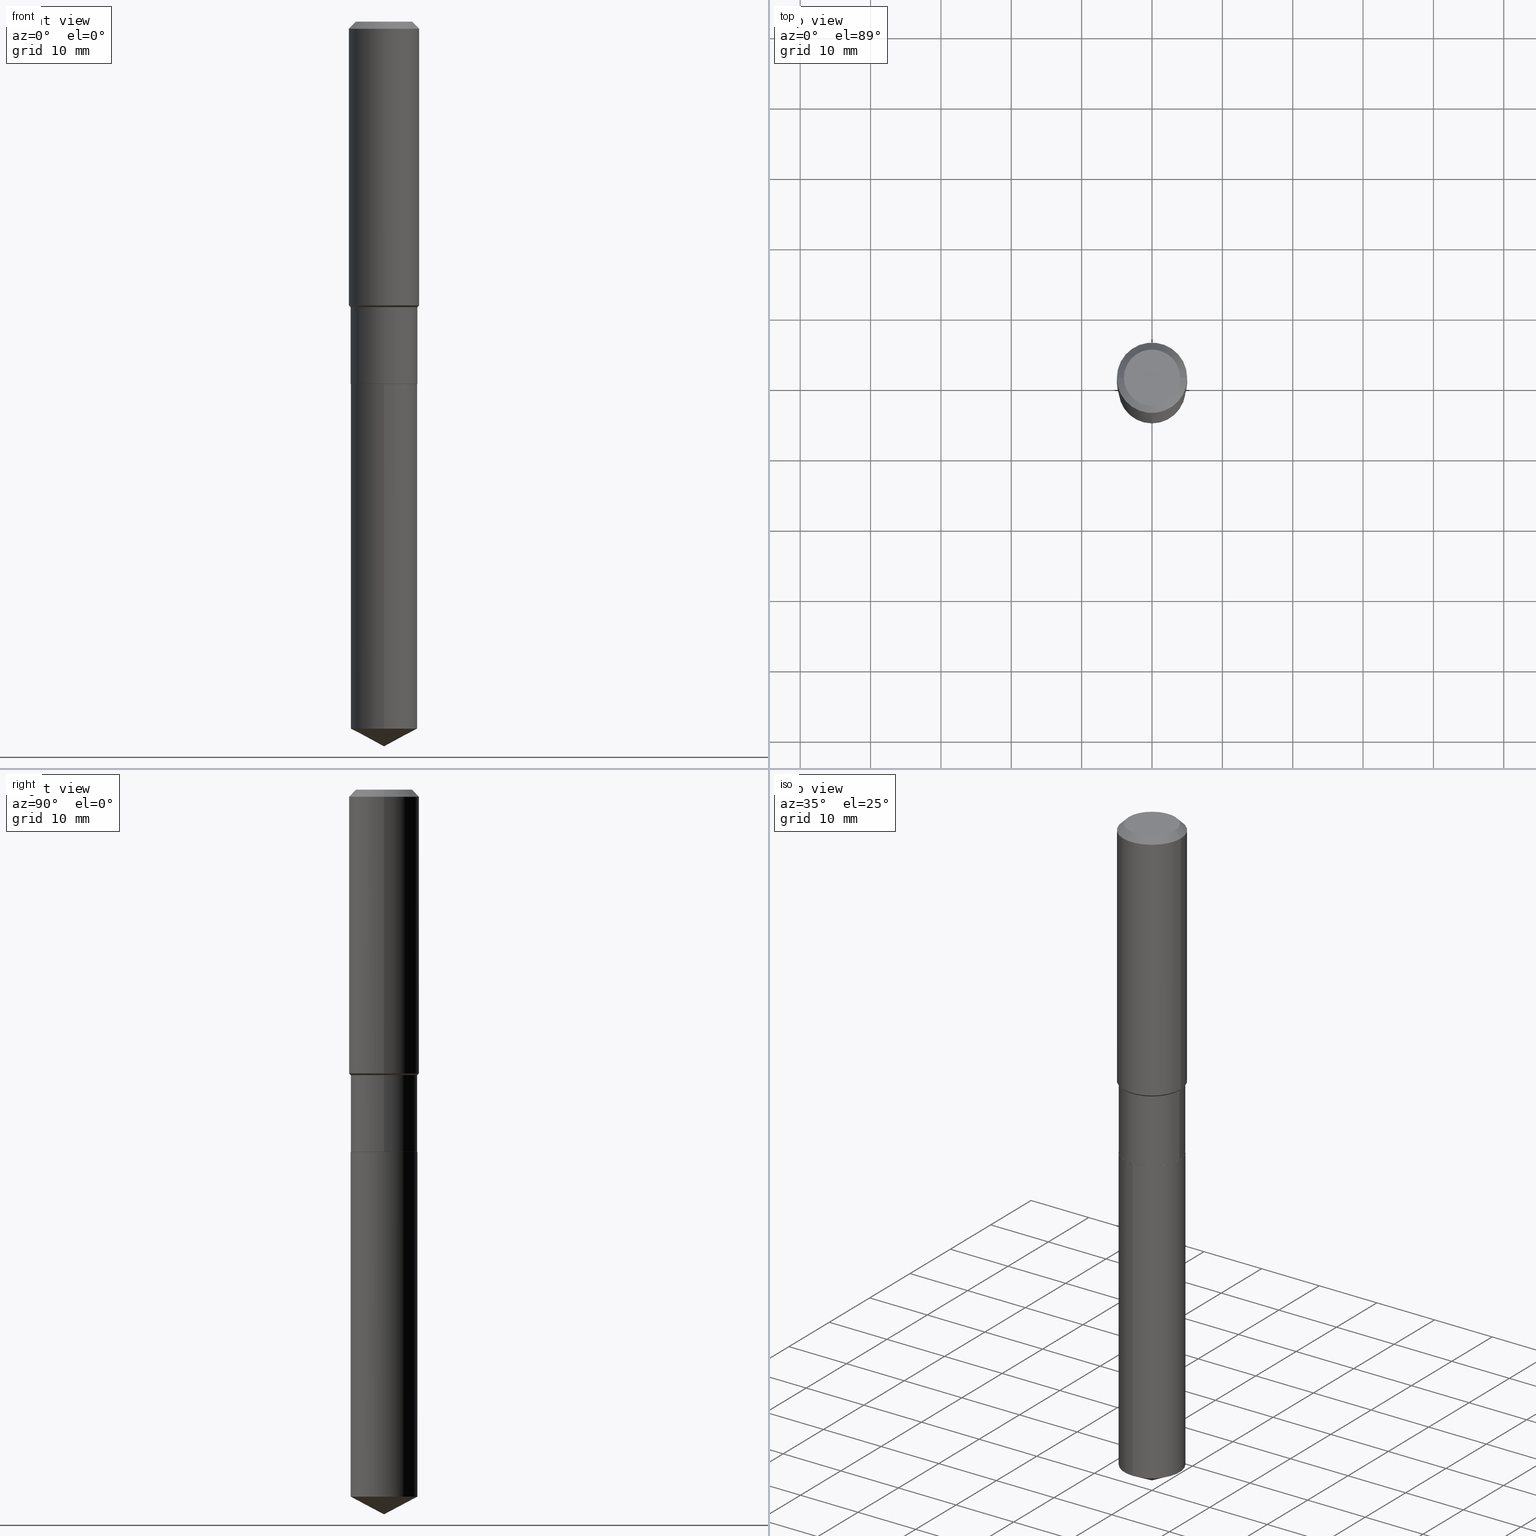
[diagram: canonical four-view strip — front | top / right | iso, engineering-drawing reading convention]
A machine part, canonical four-view strip (front | top / right | iso — engineering-drawing reading convention). The complete STEP part file that produces these views, byte-faithful:
ISO-10303-21;
HEADER;
FILE_DESCRIPTION (( 'STEP AP203' ),
    '1' );
FILE_NAME ('65225.STEP',
    '2024-04-24T21:38:09',
    ( '' ),
    ( '' ),
    'SwSTEP 2.0',
    'SolidWorks 2023',
    '' );
FILE_SCHEMA (( 'CONFIG_CONTROL_DESIGN' ));
ENDSEC;

DATA;
#1 = EDGE_CURVE ( 'NONE', #23, #146, #97, .T. ) ;
#2 = CONICAL_SURFACE ( 'NONE', #458, 0.1968500000000000250, 0.7853981633974447263 ) ;
#3 = APPROVAL_ROLE ( '' ) ;
#4 = CYLINDRICAL_SURFACE ( 'NONE', #437, 0.1968500000000001082 ) ;
#5 = EDGE_LOOP ( 'NONE', ( #305, #341, #303, #431 ) ) ;
#6 = CALENDAR_DATE ( 2024, 24, 4 ) ;
#7 = DIRECTION ( 'NONE',  ( -2.445495425185419561E-29, 3.491443218919681026E-15, 1.000000000000000000 ) ) ;
#8 = DATE_TIME_ROLE ( 'classification_date' ) ;
#9 = EDGE_CURVE ( 'NONE', #40, #338, #349, .T. ) ;
#10 = ORIENTED_EDGE ( 'NONE', *, *, #247, .T. ) ;
#11 = CONICAL_SURFACE ( 'NONE', #46, 0.1869999999999999440, 0.7853981633974533860 ) ;
#12 = DIRECTION ( 'NONE',  ( 1.000000000000000000, -6.982962677686268288E-15, 0.000000000000000000 ) ) ;
#13 = DIMENSIONAL_EXPONENTS ( 1.000000000000000000, 0.000000000000000000, 0.000000000000000000, 0.000000000000000000, 0.000000000000000000, 0.000000000000000000, 0.000000000000000000 ) ;
#14 = FACE_OUTER_BOUND ( 'NONE', #144, .T. ) ;
#15 = VERTEX_POINT ( 'NONE', #402 ) ;
#16 = DIRECTION ( 'NONE',  ( -2.445468806185136597E-29, 3.491481338843145583E-15, 1.000000000000000000 ) ) ;
#17 = AXIS2_PLACEMENT_3D ( 'NONE', #29, #486, #207 ) ;
#18 = ORIENTED_EDGE ( 'NONE', *, *, #122, .T. ) ;
#19 = DIRECTION ( 'NONE',  ( -2.445468806185136877E-29, 3.491481338843145188E-15, 1.000000000000000000 ) ) ;
#20 = VERTEX_POINT ( 'NONE', #203 ) ;
#21 = DIRECTION ( 'NONE',  ( 2.438088387897960049E-29, -3.491481338843145188E-15, -1.000000000000000000 ) ) ;
#22 = CARTESIAN_POINT ( 'NONE',  ( -0.1968500000000000250, 1.237136582792286225E-15, -0.03937000000000029365 ) ) ;
#23 = VERTEX_POINT ( 'NONE', #353 ) ;
#24 =( NAMED_UNIT ( * ) PLANE_ANGLE_UNIT ( ) SI_UNIT ( $, .RADIAN. ) );
#25 = CARTESIAN_POINT ( 'NONE',  ( 0.1968500000000000250, -1.512055823412797189E-15, -0.03937000000000029365 ) ) ;
#26 = AXIS2_PLACEMENT_3D ( 'NONE', #301, #384, #264 ) ;
#27 = AXIS2_PLACEMENT_3D ( 'NONE', #442, #123, #93 ) ;
#28 = PERSON_AND_ORGANIZATION_ROLE ( 'design_owner' ) ;
#29 = CARTESIAN_POINT ( 'NONE',  ( 4.958188004540364383E-29, -7.078978414504478595E-15, -2.027500000000000302 ) ) ;
#30 = EDGE_CURVE ( 'NONE', #333, #23, #276, .T. ) ;
#31 = EDGE_LOOP ( 'NONE', ( #52, #263, #473, #228 ) ) ;
#32 = CARTESIAN_POINT ( 'NONE',  ( 4.958188004540364383E-29, -7.078978414504478595E-15, -2.027500000000000302 ) ) ;
#33 = CARTESIAN_POINT ( 'NONE',  ( -0.1869999999999999996, -4.998547566380161442E-15, -2.027000000000000135 ) ) ;
#34 = AXIS2_PLACEMENT_3D ( 'NONE', #472, #21, #160 ) ;
#35 = DIRECTION ( 'NONE',  ( 6.982962677686265922E-15, 1.000000000000000000, -3.491443218919681026E-15 ) ) ;
#36 = DATE_AND_TIME ( #136, #154 ) ;
#37 = ORIENTED_EDGE ( 'NONE', *, *, #322, .T. ) ;
#38 = AXIS2_PLACEMENT_3D ( 'NONE', #163, #16, #189 ) ;
#39 = FACE_OUTER_BOUND ( 'NONE', #201, .T. ) ;
#40 = VERTEX_POINT ( 'NONE', #385 ) ;
#41 = DIRECTION ( 'NONE',  ( -2.445468806185136597E-29, 3.491481338843145583E-15, 1.000000000000000000 ) ) ;
#42 = ORIENTED_EDGE ( 'NONE', *, *, #266, .T. ) ;
#43 = DIRECTION ( 'NONE',  ( -6.982962677686266711E-15, -1.000000000000000000, 2.921762560068730595E-15 ) ) ;
#44 = CARTESIAN_POINT ( 'NONE',  ( 3.882304003259213067E-29, -5.542901199480434890E-15, -1.587549999999999795 ) ) ;
#45 = AXIS2_PLACEMENT_3D ( 'NONE', #255, #398, #227 ) ;
#46 = AXIS2_PLACEMENT_3D ( 'NONE', #83, #348, #440 ) ;
#47 = CARTESIAN_POINT ( 'NONE',  ( -1.305814020727282303E-15, -0.1870000000000070772, -2.027499999999999414 ) ) ;
#48 = DIRECTION ( 'NONE',  ( 0.7071067811865450192, -7.319954787623246579E-15, -0.7071067811865500152 ) ) ;
#49 = UNCERTAINTY_MEASURE_WITH_UNIT (LENGTH_MEASURE( 1.000000000000000082E-05 ), #315, 'distance_accuracy_value', 'NONE');
#50 = CARTESIAN_POINT ( 'NONE',  ( 0.1869999999999999440, -6.883106311395372484E-15, -1.597399999999999931 ) ) ;
#51 = DIRECTION ( 'NONE',  ( 1.000000000000000000, -6.982962677686265922E-15, 4.876176775795935793E-29 ) ) ;
#52 = ORIENTED_EDGE ( 'NONE', *, *, #412, .F. ) ;
#53 = ORIENTED_EDGE ( 'NONE', *, *, #449, .F. ) ;
#54 = DIRECTION ( 'NONE',  ( 1.000000000000000000, -6.982962677686265133E-15, 0.000000000000000000 ) ) ;
#55 = AXIS2_PLACEMENT_3D ( 'NONE', #401, #480, #239 ) ;
#56 = DIRECTION ( 'NONE',  ( 0.7071067811865511255, -2.468850131082294531E-15, 0.7071067811865439090 ) ) ;
#57 = DIRECTION ( 'NONE',  ( -6.982962677686266711E-15, -1.000000000000000000, 2.921762560068730595E-15 ) ) ;
#58 = ORIENTED_EDGE ( 'NONE', *, *, #382, .F. ) ;
#59 = DIRECTION ( 'NONE',  ( -2.445468806185136597E-29, 3.491481338843145583E-15, 1.000000000000000000 ) ) ;
#60 = FACE_OUTER_BOUND ( 'NONE', #456, .T. ) ;
#61 = AXIS2_PLACEMENT_3D ( 'NONE', #187, #304, #51 ) ;
#62 = PERSON_AND_ORGANIZATION ( #487, #140 ) ;
#63 = CARTESIAN_POINT ( 'NONE',  ( 0.000000000000000000, 0.000000000000000000, 0.000000000000000000 ) ) ;
#64 = EDGE_CURVE ( 'NONE', #309, #343, #152, .T. ) ;
#65 = DATE_AND_TIME ( #410, #80 ) ;
#66 = CARTESIAN_POINT ( 'NONE',  ( 4.958188004540364383E-29, -7.078978414504478595E-15, -2.027500000000000302 ) ) ;
#67 = EDGE_CURVE ( 'NONE', #146, #23, #373, .T. ) ;
#68 = DIRECTION ( 'NONE',  ( -2.445495425185419841E-29, 3.491443218919680631E-15, 1.000000000000000000 ) ) ;
#69 = SECURITY_CLASSIFICATION ( '', '', #145 ) ;
#70 = VECTOR ( 'NONE', #488, 39.37007874015748143 ) ;
#71 = EDGE_CURVE ( 'NONE', #340, #92, #179, .T. ) ;
#72 = DATE_AND_TIME ( #415, #165 ) ;
#73 = CARTESIAN_POINT ( 'NONE',  ( 3.906391871000137557E-29, -5.577292290668041271E-15, -1.597399999999999931 ) ) ;
#74 = PRODUCT_DEFINITION_SHAPE ( 'NONE', 'NONE',  #127 ) ;
#75 = PERSON_AND_ORGANIZATION ( #487, #140 ) ;
#76 = ADVANCED_FACE ( 'NONE', ( #39 ), #4, .T. ) ;
#77 = APPROVAL_STATUS ( 'not_yet_approved' ) ;
#78 = CARTESIAN_POINT ( 'NONE',  ( 4.958188004540364383E-29, -7.078978414504478595E-15, -2.027500000000000302 ) ) ;
#79 = ORIENTED_EDGE ( 'NONE', *, *, #219, .T. ) ;
#80 = LOCAL_TIME ( 17, 38, 9.000000000000000000, #131 ) ;
#81 = EDGE_CURVE ( 'NONE', #20, #188, #291, .T. ) ;
#82 = DIRECTION ( 'NONE',  ( -0.7071067811868130271, 7.493145998871311837E-15, 0.7071067811862817853 ) ) ;
#83 = CARTESIAN_POINT ( 'NONE',  ( 3.906391871000137557E-29, -5.577292290668041271E-15, -1.597399999999999931 ) ) ;
#84 = LINE ( 'NONE', #232, #465 ) ;
#85 =( LENGTH_UNIT ( ) NAMED_UNIT ( * ) SI_UNIT ( $, .METRE. ) );
#86 = VECTOR ( 'NONE', #91, 39.37007874015748143 ) ;
#87 = DIRECTION ( 'NONE',  ( -2.445468806185136597E-29, 3.491481338843145583E-15, 1.000000000000000000 ) ) ;
#88 = AXIS2_PLACEMENT_3D ( 'NONE', #205, #59, #170 ) ;
#89 = DIRECTION ( 'NONE',  ( -2.445495425185419841E-29, 3.491443218919680631E-15, 1.000000000000000000 ) ) ;
#90 = CARTESIAN_POINT ( 'NONE',  ( 9.627810689950954155E-31, -1.374596203102556547E-16, -0.03937000000000029365 ) ) ;
#91 = DIRECTION ( 'NONE',  ( -0.7071067811865450192, 2.468850131082230634E-15, -0.7071067811865500152 ) ) ;
#92 = VERTEX_POINT ( 'NONE', #253 ) ;
#93 = DIRECTION ( 'NONE',  ( 1.000000000000000000, 0.000000000000000000, 0.000000000000000000 ) ) ;
#94 = CARTESIAN_POINT ( 'NONE',  ( 9.916728498669395871E-29, -1.415815139704119698E-14, -4.055100000000000371 ) ) ;
#95 = EDGE_CURVE ( 'NONE', #40, #309, #223, .T. ) ;
#96 = CYLINDRICAL_SURFACE ( 'NONE', #17, 0.1869999999999999996 ) ;
#97 = CIRCLE ( 'NONE', #185, 0.1869999999999999996 ) ;
#98 = FACE_OUTER_BOUND ( 'NONE', #265, .T. ) ;
#99 = PERSON_AND_ORGANIZATION_ROLE ( 'creator' ) ;
#100 = CARTESIAN_POINT ( 'NONE',  ( -0.1869999999999999718, 1.328714915871387147E-15, -9.198408618776671699E-30 ) ) ;
#101 = DATE_AND_TIME ( #6, #381 ) ;
#102 = AXIS2_PLACEMENT_3D ( 'NONE', #78, #220, #378 ) ;
#103 = CC_DESIGN_SECURITY_CLASSIFICATION ( #69, ( #429 ) ) ;
#104 = PERSON_AND_ORGANIZATION_ROLE ( 'classification_officer' ) ;
#105 = CARTESIAN_POINT ( 'NONE',  ( -0.1864999999999999991, -5.751166985137778976E-15, -2.027499999999999858 ) ) ;
#106 = ORIENTED_EDGE ( 'NONE', *, *, #376, .T. ) ;
#107 = DIRECTION ( 'NONE',  ( -0.7071067811865511255, 7.493145998870366782E-15, 0.7071067811865439090 ) ) ;
#108 = AXIS2_PLACEMENT_3D ( 'NONE', #369, #420, #217 ) ;
#109 = AXIS2_PLACEMENT_3D ( 'NONE', #32, #320, #35 ) ;
#110 = ORIENTED_EDGE ( 'NONE', *, *, #214, .F. ) ;
#111 = CARTESIAN_POINT ( 'NONE',  ( 9.627810689950954155E-31, -1.374596203102556547E-16, -0.03937000000000029365 ) ) ;
#112 = CARTESIAN_POINT ( 'NONE',  ( 0.1864999999999999991, -8.381300953892966011E-15, -2.027499999999999858 ) ) ;
#113 = PRODUCT_RELATED_PRODUCT_CATEGORY ( 'detail', '', ( #489 ) ) ;
#114 = AXIS2_PLACEMENT_3D ( 'NONE', #116, #229, #259 ) ;
#115 = ORIENTED_EDGE ( 'NONE', *, *, #135, .T. ) ;
#116 = CARTESIAN_POINT ( 'NONE',  ( -8.636267291959854835E-28, 1.233001657604707014E-13, 35.31497874015747840 ) ) ;
#117 = EDGE_LOOP ( 'NONE', ( #18, #222 ) ) ;
#118 = FACE_OUTER_BOUND ( 'NONE', #308, .T. ) ;
#119 = EDGE_LOOP ( 'NONE', ( #470, #230, #302 ) ) ;
#120 = ORIENTED_EDGE ( 'NONE', *, *, #9, .T. ) ;
#121 = DIRECTION ( 'NONE',  ( -2.445468806185136597E-29, 3.491481338843145583E-15, 1.000000000000000000 ) ) ;
#122 = EDGE_CURVE ( 'NONE', #224, #270, #477, .T. ) ;
#123 = DIRECTION ( 'NONE',  ( 0.000000000000000000, 0.000000000000000000, 1.000000000000000000 ) ) ;
#124 = FACE_OUTER_BOUND ( 'NONE', #119, .T. ) ;
#125 = FACE_OUTER_BOUND ( 'NONE', #117, .T. ) ;
#126 = EDGE_LOOP ( 'NONE', ( #332, #106, #403 ) ) ;
#127 = PRODUCT_DEFINITION ( 'UNKNOWN', '', #429, #380 ) ;
#128 = CARTESIAN_POINT ( 'NONE',  ( 1.328714915871436648E-15, 0.1869999999999929496, -2.027500000000000746 ) ) ;
#129 = APPROVAL ( #77, 'UNSPECIFIED' ) ;
#130 = APPROVAL_PERSON_ORGANIZATION ( #62, #471, #244 ) ;
#131 = COORDINATED_UNIVERSAL_TIME_OFFSET ( 5, 0, .BEHIND. ) ;
#132 = DIRECTION ( 'NONE',  ( -2.445468806185136597E-29, 3.491481338843145583E-15, 1.000000000000000000 ) ) ;
#133 = VECTOR ( 'NONE', #204, 39.37007874015748143 ) ;
#134 = DIRECTION ( 'NONE',  ( -1.000000000000000000, 6.982962677686265922E-15, 0.000000000000000000 ) ) ;
#135 = EDGE_CURVE ( 'NONE', #188, #467, #141, .T. ) ;
#136 = CALENDAR_DATE ( 2024, 24, 4 ) ;
#137 = CARTESIAN_POINT ( 'NONE',  ( 9.627810689950954155E-31, -1.374596203102556547E-16, -0.03937000000000029365 ) ) ;
#138 = CC_DESIGN_PERSON_AND_ORGANIZATION_ASSIGNMENT ( #362, #99, ( #127 ) ) ;
#139 = COORDINATED_UNIVERSAL_TIME_OFFSET ( 5, 0, .BEHIND. ) ;
#140 = ORGANIZATION ( 'UNSPECIFIED', 'UNSPECIFIED', '' ) ;
#141 = CIRCLE ( 'NONE', #383, 0.1968500000000002192 ) ;
#142 = APPROVAL_PERSON_ORGANIZATION ( #75, #129, #3 ) ;
#143 = CARTESIAN_POINT ( 'NONE',  ( 0.000000000000000000, 0.000000000000000000, 0.000000000000000000 ) ) ;
#144 = EDGE_LOOP ( 'NONE', ( #79, #461, #110, #158 ) ) ;
#145 = SECURITY_CLASSIFICATION_LEVEL ( 'unclassified' ) ;
#146 = VERTEX_POINT ( 'NONE', #150 ) ;
#147 = DIRECTION ( 'NONE',  ( 1.000000000000000000, -6.982962677686266711E-15, 4.876176775795935793E-29 ) ) ;
#148 = EDGE_LOOP ( 'NONE', ( #417, #236, #37, #466 ) ) ;
#149 = VECTOR ( 'NONE', #248, 39.37007874015748143 ) ;
#150 = CARTESIAN_POINT ( 'NONE',  ( -1.305814020727234577E-15, -0.1870000000000137386, -3.955670336279303534 ) ) ;
#151 = CARTESIAN_POINT ( 'NONE',  ( -0.1968500000000002192, -4.144197824136677102E-15, -1.587549999999999795 ) ) ;
#152 = LINE ( 'NONE', #218, #184 ) ;
#153 = CARTESIAN_POINT ( 'NONE',  ( 4.958188004540364383E-29, -7.078978414504477806E-15, -2.027499999999999858 ) ) ;
#154 = LOCAL_TIME ( 17, 38, 9.000000000000000000, #323 ) ;
#155 = CIRCLE ( 'NONE', #428, 0.1869999999999999996 ) ;
#156 = PLANE ( 'NONE',  #34 ) ;
#157 = ORIENTED_EDGE ( 'NONE', *, *, #281, .F. ) ;
#158 = ORIENTED_EDGE ( 'NONE', *, *, #71, .F. ) ;
#159 = ADVANCED_FACE ( 'NONE', ( #287 ), #326, .T. ) ;
#160 = DIRECTION ( 'NONE',  ( -1.000000000000000000, 6.982962677686265922E-15, -4.876176775795935793E-29 ) ) ;
#161 = ORIENTED_EDGE ( 'NONE', *, *, #453, .F. ) ;
#162 = CC_DESIGN_DATE_AND_TIME_ASSIGNMENT ( #72, #8, ( #69 ) ) ;
#163 = CARTESIAN_POINT ( 'NONE',  ( 4.956965270137272702E-29, -7.077232673835057091E-15, -2.027000000000000135 ) ) ;
#164 = ORIENTED_EDGE ( 'NONE', *, *, #122, .F. ) ;
#165 = LOCAL_TIME ( 17, 38, 9.000000000000000000, #139 ) ;
#166 = CIRCLE ( 'NONE', #45, 0.1864999999999999991 ) ;
#167 = FACE_OUTER_BOUND ( 'NONE', #126, .T. ) ;
#168 = VECTOR ( 'NONE', #7, 39.37007874015748143 ) ;
#169 = ADVANCED_FACE ( 'NONE', ( #193 ), #11, .T. ) ;
#170 = DIRECTION ( 'NONE',  ( 1.000000000000000000, -6.982962677686266711E-15, 4.876176775795935793E-29 ) ) ;
#171 = CARTESIAN_POINT ( 'NONE',  ( 9.627810689950954155E-31, -1.374596203102556547E-16, -0.03937000000000029365 ) ) ;
#172 = CYLINDRICAL_SURFACE ( 'NONE', #88, 0.1869999999999999718 ) ;
#173 = CONICAL_SURFACE ( 'NONE', #406, 0.1968500000000000250, 0.7853981633974447263 ) ;
#174 = ADVANCED_FACE ( 'NONE', ( #339 ), #156, .F. ) ;
#175 = DIRECTION ( 'NONE',  ( -1.000000000000000000, 6.982962677686265922E-15, 0.000000000000000000 ) ) ;
#176 = PERSON_AND_ORGANIZATION ( #487, #140 ) ;
#177 = DIRECTION ( 'NONE',  ( 0.7071067811868130271, -2.468850131085038979E-15, 0.7071067811862817853 ) ) ;
#178 = PERSON_AND_ORGANIZATION ( #487, #140 ) ;
#179 = LINE ( 'NONE', #112, #446 ) ;
#180 = ORIENTED_EDGE ( 'NONE', *, *, #67, .T. ) ;
#181 = EDGE_LOOP ( 'NONE', ( #260, #311, #161, #399 ) ) ;
#182 = EDGE_CURVE ( 'NONE', #476, #379, #84, .T. ) ;
#183 = DIRECTION ( 'NONE',  ( 1.000000000000000000, -6.982962677686265922E-15, 0.000000000000000000 ) ) ;
#184 = VECTOR ( 'NONE', #48, 39.37007874015748143 ) ;
#185 = AXIS2_PLACEMENT_3D ( 'NONE', #436, #89, #57 ) ;
#186 = APPROVAL ( #370, 'UNSPECIFIED' ) ;
#187 = CARTESIAN_POINT ( 'NONE',  ( 7.032042479484773921E-29, -4.109100769917726060E-15, -2.027500000000000302 ) ) ;
#188 = VERTEX_POINT ( 'NONE', #151 ) ;
#189 = DIRECTION ( 'NONE',  ( 1.000000000000000000, -6.982962677686265133E-15, 0.000000000000000000 ) ) ;
#190 = ORIENTED_EDGE ( 'NONE', *, *, #412, .T. ) ;
#191 = ADVANCED_FACE ( 'NONE', ( #435 ), #393, .T. ) ;
#192 = DIRECTION ( 'NONE',  ( -2.445468806185136597E-29, 3.491481338843145583E-15, 1.000000000000000000 ) ) ;
#193 = FACE_OUTER_BOUND ( 'NONE', #5, .T. ) ;
#194 = EDGE_LOOP ( 'NONE', ( #58, #391, #387, #441 ) ) ;
#195 = APPROVAL_PERSON_ORGANIZATION ( #176, #186, #282 ) ;
#196 = DIRECTION ( 'NONE',  ( 1.000000000000000000, -6.982962677686267499E-15, 0.000000000000000000 ) ) ;
#197 = CIRCLE ( 'NONE', #234, 0.1968500000000000250 ) ;
#198 = LINE ( 'NONE', #346, #212 ) ;
#199 = CC_DESIGN_PERSON_AND_ORGANIZATION_ASSIGNMENT ( #178, #490, ( #429 ) ) ;
#200 = DIRECTION ( 'NONE',  ( -2.445468806185136597E-29, 3.491481338843145583E-15, 1.000000000000000000 ) ) ;
#201 = EDGE_LOOP ( 'NONE', ( #237, #115, #433, #288 ) ) ;
#202 = CYLINDRICAL_SURFACE ( 'NONE', #374, 0.1968500000000001082 ) ;
#203 = CARTESIAN_POINT ( 'NONE',  ( -0.1869999999999999440, -4.998547566380162231E-15, -1.597399999999999931 ) ) ;
#204 = DIRECTION ( 'NONE',  ( -6.165590087286829718E-15, -0.8829475928589257672, 0.4694715627858929707 ) ) ;
#205 = CARTESIAN_POINT ( 'NONE',  ( 0.000000000000000000, 0.000000000000000000, 0.000000000000000000 ) ) ;
#206 = APPROVAL_DATE_TIME ( #65, #471 ) ;
#207 = DIRECTION ( 'NONE',  ( -6.982962677686266711E-15, -1.000000000000000000, 2.921762560068730595E-15 ) ) ;
#208 = EDGE_CURVE ( 'NONE', #343, #338, #240, .T. ) ;
#209 = APPLICATION_PROTOCOL_DEFINITION ( 'international standard', 'config_control_design', 1994, #482 ) ;
#210 = CARTESIAN_POINT ( 'NONE',  ( 0.1864999999999999991, -8.381300953892966011E-15, -2.027499999999999858 ) ) ;
#211 = VECTOR ( 'NONE', #107, 39.37007874015748143 ) ;
#212 = VECTOR ( 'NONE', #19, 39.37007874015748143 ) ;
#213 = COORDINATED_UNIVERSAL_TIME_OFFSET ( 5, 0, .BEHIND. ) ;
#214 = EDGE_CURVE ( 'NONE', #92, #379, #454, .T. ) ;
#215 = LINE ( 'NONE', #295, #168 ) ;
#216 = CONICAL_SURFACE ( 'NONE', #114, 74.04434902938334062, 1.082104136236485381 ) ;
#217 = DIRECTION ( 'NONE',  ( 1.000000000000000000, -6.982962677686267499E-15, 0.000000000000000000 ) ) ;
#218 = CARTESIAN_POINT ( 'NONE',  ( 0.1968500000000000250, -1.487948651171581601E-15, -0.03937000000000029365 ) ) ;
#219 = EDGE_CURVE ( 'NONE', #340, #476, #166, .T. ) ;
#220 = DIRECTION ( 'NONE',  ( -2.445495425185419841E-29, 3.491443218919680631E-15, 1.000000000000000000 ) ) ;
#221 = CARTESIAN_POINT ( 'NONE',  ( 9.673519740889634982E-29, -1.381107566002893421E-14, -3.955670336279303978 ) ) ;
#222 = ORIENTED_EDGE ( 'NONE', *, *, #392, .T. ) ;
#223 = CIRCLE ( 'NONE', #267, 0.1574800000000000089 ) ;
#224 = VERTEX_POINT ( 'NONE', #47 ) ;
#225 = AXIS2_PLACEMENT_3D ( 'NONE', #310, #298, #262 ) ;
#226 = AXIS2_PLACEMENT_3D ( 'NONE', #66, #68, #43 ) ;
#227 = DIRECTION ( 'NONE',  ( 1.000000000000000000, -6.982962677686268288E-15, 0.000000000000000000 ) ) ;
#228 = ORIENTED_EDGE ( 'NONE', *, *, #9, .F. ) ;
#229 = DIRECTION ( 'NONE',  ( -2.445495425185419841E-29, 3.491443218919680631E-15, 1.000000000000000000 ) ) ;
#230 = ORIENTED_EDGE ( 'NONE', *, *, #30, .T. ) ;
#231 = ORIENTED_EDGE ( 'NONE', *, *, #468, .F. ) ;
#232 = CARTESIAN_POINT ( 'NONE',  ( -0.1864999999999999991, -5.753816212311890177E-15, -2.027499999999999858 ) ) ;
#233 = ORIENTED_EDGE ( 'NONE', *, *, #382, .T. ) ;
#234 = AXIS2_PLACEMENT_3D ( 'NONE', #111, #342, #469 ) ;
#235 = DIRECTION ( 'NONE',  ( 1.000000000000000000, -6.982962677686265922E-15, 0.000000000000000000 ) ) ;
#236 = ORIENTED_EDGE ( 'NONE', *, *, #306, .T. ) ;
#237 = ORIENTED_EDGE ( 'NONE', *, *, #404, .F. ) ;
#238 = DIRECTION ( 'NONE',  ( -6.982962677686266711E-15, -1.000000000000000000, 2.921762560068730595E-15 ) ) ;
#239 = DIRECTION ( 'NONE',  ( 1.000000000000000000, -6.982962677686265922E-15, 4.876223630392693006E-29 ) ) ;
#240 = CIRCLE ( 'NONE', #251, 0.1968500000000000250 ) ;
#241 = APPLICATION_PROTOCOL_DEFINITION ( 'international standard', 'config_control_design', 1994, #462 ) ;
#242 = LINE ( 'NONE', #443, #70 ) ;
#243 = ADVANCED_FACE ( 'NONE', ( #118 ), #336, .F. ) ;
#244 = APPROVAL_ROLE ( '' ) ;
#245 = DIRECTION ( 'NONE',  ( 2.445468806185136597E-29, -3.491481338843145583E-15, -1.000000000000000000 ) ) ;
#246 = DIRECTION ( 'NONE',  ( 6.273719981627760554E-15, 0.8829475928589289868, 0.4694715627858866425 ) ) ;
#247 = EDGE_CURVE ( 'NONE', #476, #340, #327, .T. ) ;
#248 = DIRECTION ( 'NONE',  ( -2.445468806185136877E-29, 3.491481338843145188E-15, 1.000000000000000000 ) ) ;
#249 = PERSON_AND_ORGANIZATION ( #487, #140 ) ;
#250 = AXIS2_PLACEMENT_3D ( 'NONE', #455, #87, #427 ) ;
#251 = AXIS2_PLACEMENT_3D ( 'NONE', #90, #464, #235 ) ;
#252 = FACE_OUTER_BOUND ( 'NONE', #271, .T. ) ;
#253 = CARTESIAN_POINT ( 'NONE',  ( 0.1869999999999999996, -8.383046694562388303E-15, -2.027000000000000135 ) ) ;
#254 = AXIS2_PLACEMENT_3D ( 'NONE', #153, #200, #475 ) ;
#255 = CARTESIAN_POINT ( 'NONE',  ( 4.958188004540364383E-29, -7.078978414504477806E-15, -2.027499999999999858 ) ) ;
#256 = DIRECTION ( 'NONE',  ( -6.982962677686266711E-15, -1.000000000000000000, 2.921762560068730595E-15 ) ) ;
#257 = AXIS2_PLACEMENT_3D ( 'NONE', #221, #299, #256 ) ;
#258 = ORIENTED_EDGE ( 'NONE', *, *, #71, .T. ) ;
#259 = DIRECTION ( 'NONE',  ( -6.982962677686265133E-15, -1.000000000000000000, 3.541896320645570335E-15 ) ) ;
#260 = ORIENTED_EDGE ( 'NONE', *, *, #214, .T. ) ;
#261 = ORIENTED_EDGE ( 'NONE', *, *, #404, .T. ) ;
#262 = DIRECTION ( 'NONE',  ( 1.000000000000000000, -6.982962677686265922E-15, 0.000000000000000000 ) ) ;
#263 = ORIENTED_EDGE ( 'NONE', *, *, #64, .T. ) ;
#264 = DIRECTION ( 'NONE',  ( 1.000000000000000000, -6.982962677686266711E-15, 4.876176775795935793E-29 ) ) ;
#265 = EDGE_LOOP ( 'NONE', ( #395, #426, #120, #42 ) ) ;
#266 = EDGE_CURVE ( 'NONE', #338, #343, #197, .T. ) ;
#267 = AXIS2_PLACEMENT_3D ( 'NONE', #422, #424, #328 ) ;
#268 = VECTOR ( 'NONE', #448, 39.37007874015748143 ) ;
#269 = CARTESIAN_POINT ( 'NONE',  ( 1.328714915871483980E-15, 0.1869999999999929219, -2.027500000000000746 ) ) ;
#270 = VERTEX_POINT ( 'NONE', #269 ) ;
#271 = EDGE_LOOP ( 'NONE', ( #375, #397, #452, #157 ) ) ;
#272 = CARTESIAN_POINT ( 'NONE',  ( 9.916620558623248508E-29, -1.415830597333084866E-14, -4.055100000000000371 ) ) ;
#273 = EDGE_CURVE ( 'NONE', #467, #188, #396, .T. ) ;
#274 = MECHANICAL_CONTEXT ( 'NONE', #482, 'mechanical' ) ;
#275 = CARTESIAN_POINT ( 'NONE',  ( 4.958188004540364383E-29, -7.078978414504478595E-15, -2.027500000000000302 ) ) ;
#276 = LINE ( 'NONE', #409, #364 ) ;
#277 = CONICAL_SURFACE ( 'NONE', #345, 74.04434902938334062, 1.082104136236485381 ) ;
#278 = CARTESIAN_POINT ( 'NONE',  ( 3.906391871000137557E-29, -5.577292290668041271E-15, -1.597399999999999931 ) ) ;
#279 = MANIFOLD_SOLID_BREP ( 'Body-Move/Copy2[1]', #478 ) ;
#280 = DIRECTION ( 'NONE',  ( 2.445468806185136597E-29, -3.491481338843145583E-15, -1.000000000000000000 ) ) ;
#281 = EDGE_CURVE ( 'NONE', #15, #467, #386, .T. ) ;
#282 = APPROVAL_ROLE ( '' ) ;
#283 = LINE ( 'NONE', #272, #133 ) ;
#284 = ADVANCED_FACE ( 'NONE', ( #14 ), #356, .T. ) ;
#285 = SHAPE_DEFINITION_REPRESENTATION ( #74, #319 ) ;
#286 = CONICAL_SURFACE ( 'NONE', #355, 0.1869999999999999440, 0.7853981633974533860 ) ;
#287 = FACE_OUTER_BOUND ( 'NONE', #438, .T. ) ;
#288 = ORIENTED_EDGE ( 'NONE', *, *, #266, .F. ) ;
#289 = MANIFOLD_SOLID_BREP ( 'Body-Move/Copy2[2]', #292 ) ;
#290 = DATE_TIME_ROLE ( 'creation_date' ) ;
#291 = LINE ( 'NONE', #459, #211 ) ;
#292 = CLOSED_SHELL ( 'NONE', ( #284, #354, #365, #483, #191, #425, #169, #76, #347, #174, #243, #159 ) ) ;
#293 = CIRCLE ( 'NONE', #55, 0.1574800000000000089 ) ;
#294 = ORIENTED_EDGE ( 'NONE', *, *, #208, .F. ) ;
#295 = CARTESIAN_POINT ( 'NONE',  ( -1.305814020727282303E-15, -0.1870000000000070772, -2.027499999999999414 ) ) ;
#296 = CC_DESIGN_PERSON_AND_ORGANIZATION_ASSIGNMENT ( #249, #423, ( #429 ) ) ;
#297 = ADVANCED_FACE ( 'NONE', ( #124 ), #216, .T. ) ;
#298 = DIRECTION ( 'NONE',  ( -2.445468806185136597E-29, 3.491481338843145583E-15, 1.000000000000000000 ) ) ;
#299 = DIRECTION ( 'NONE',  ( -2.445495425185419841E-29, 3.491443218919680631E-15, 1.000000000000000000 ) ) ;
#300 = CC_DESIGN_PERSON_AND_ORGANIZATION_ASSIGNMENT ( #358, #28, ( #489 ) ) ;
#301 = CARTESIAN_POINT ( 'NONE',  ( 0.000000000000000000, 0.000000000000000000, 0.000000000000000000 ) ) ;
#302 = ORIENTED_EDGE ( 'NONE', *, *, #67, .F. ) ;
#303 = ORIENTED_EDGE ( 'NONE', *, *, #281, .T. ) ;
#304 = DIRECTION ( 'NONE',  ( -2.438088387897960049E-29, 3.491481338843145188E-15, 1.000000000000000000 ) ) ;
#305 = ORIENTED_EDGE ( 'NONE', *, *, #81, .F. ) ;
#306 = EDGE_CURVE ( 'NONE', #379, #92, #155, .T. ) ;
#307 = FACE_OUTER_BOUND ( 'NONE', #388, .T. ) ;
#308 = EDGE_LOOP ( 'NONE', ( #329, #344 ) ) ;
#309 = VERTEX_POINT ( 'NONE', #389 ) ;
#310 = CARTESIAN_POINT ( 'NONE',  ( 3.882304003259213067E-29, -5.542901199480434890E-15, -1.587549999999999795 ) ) ;
#311 = ORIENTED_EDGE ( 'NONE', *, *, #434, .T. ) ;
#312 = AXIS2_PLACEMENT_3D ( 'NONE', #463, #121, #12 ) ;
#313 = LOCAL_TIME ( 17, 38, 9.000000000000000000, #213 ) ;
#314 = CARTESIAN_POINT ( 'NONE',  ( -8.636267291959854835E-28, 1.233001657604707014E-13, 35.31497874015747840 ) ) ;
#315 =( CONVERSION_BASED_UNIT ( 'INCH', #351 ) LENGTH_UNIT ( ) NAMED_UNIT ( #13 ) );
#316 = LINE ( 'NONE', #481, #149 ) ;
#317 = DIRECTION ( 'NONE',  ( -2.445468806185136597E-29, 3.491481338843145583E-15, 1.000000000000000000 ) ) ;
#318 = CC_DESIGN_APPROVAL ( #186, ( #429 ) ) ;
#319 = ADVANCED_BREP_SHAPE_REPRESENTATION ( '65225', ( #279, #289, #27 ), #357 ) ;
#320 = DIRECTION ( 'NONE',  ( 2.445495425185419281E-29, -3.491443218919681026E-15, -1.000000000000000000 ) ) ;
#321 = DIRECTION ( 'NONE',  ( -6.982962677686265133E-15, -1.000000000000000000, 3.541896320645570335E-15 ) ) ;
#322 = EDGE_CURVE ( 'NONE', #92, #15, #198, .T. ) ;
#323 = COORDINATED_UNIVERSAL_TIME_OFFSET ( 5, 0, .BEHIND. ) ;
#324 = CARTESIAN_POINT ( 'NONE',  ( 0.1968500000000002192, -6.917497402582978865E-15, -1.587549999999999795 ) ) ;
#325 = DIRECTION ( 'NONE',  ( -2.445468806185136597E-29, 3.491481338843145583E-15, 1.000000000000000000 ) ) ;
#326 = CONICAL_SURFACE ( 'NONE', #250, 0.1864999999999999991, 0.7853981633978239785 ) ;
#327 = CIRCLE ( 'NONE', #312, 0.1864999999999999991 ) ;
#328 = DIRECTION ( 'NONE',  ( 1.000000000000000000, -6.982962677686265922E-15, 4.876223630392693006E-29 ) ) ;
#329 = ORIENTED_EDGE ( 'NONE', *, *, #219, .F. ) ;
#330 = ADVANCED_FACE ( 'NONE', ( #307 ), #96, .T. ) ;
#331 = COORDINATED_UNIVERSAL_TIME_OFFSET ( 5, 0, .BEHIND. ) ;
#332 = ORIENTED_EDGE ( 'NONE', *, *, #30, .F. ) ;
#333 = VERTEX_POINT ( 'NONE', #94 ) ;
#334 = AXIS2_PLACEMENT_3D ( 'NONE', #278, #132, #413 ) ;
#335 = ORIENTED_EDGE ( 'NONE', *, *, #306, .F. ) ;
#336 = PLANE ( 'NONE',  #61 ) ;
#337 = ADVANCED_FACE ( 'NONE', ( #125 ), #367, .F. ) ;
#338 = VERTEX_POINT ( 'NONE', #361 ) ;
#339 = FACE_OUTER_BOUND ( 'NONE', #350, .T. ) ;
#340 = VERTEX_POINT ( 'NONE', #210 ) ;
#341 = ORIENTED_EDGE ( 'NONE', *, *, #474, .T. ) ;
#342 = DIRECTION ( 'NONE',  ( -2.445468806185136597E-29, 3.491481338843145583E-15, 1.000000000000000000 ) ) ;
#343 = VERTEX_POINT ( 'NONE', #25 ) ;
#344 = ORIENTED_EDGE ( 'NONE', *, *, #247, .F. ) ;
#345 = AXIS2_PLACEMENT_3D ( 'NONE', #314, #359, #321 ) ;
#346 = CARTESIAN_POINT ( 'NONE',  ( 0.1869999999999999718, -1.305814020727331607E-15, 9.118450570738398307E-30 ) ) ;
#347 = ADVANCED_FACE ( 'NONE', ( #98 ), #173, .T. ) ;
#348 = DIRECTION ( 'NONE',  ( -2.445468806185136597E-29, 3.491481338843145583E-15, 1.000000000000000000 ) ) ;
#349 = LINE ( 'NONE', #22, #86 ) ;
#350 = EDGE_LOOP ( 'NONE', ( #390, #190 ) ) ;
#351 = LENGTH_MEASURE_WITH_UNIT ( LENGTH_MEASURE( 0.02539999999999999897 ), #85 );
#352 = DIRECTION ( 'NONE',  ( -2.445468806185136877E-29, 3.491481338843145188E-15, 1.000000000000000000 ) ) ;
#353 = CARTESIAN_POINT ( 'NONE',  ( 1.328714915871483585E-15, 0.1869999999999861495, -3.955670336279304422 ) ) ;
#354 = ADVANCED_FACE ( 'NONE', ( #363 ), #2, .T. ) ;
#355 = AXIS2_PLACEMENT_3D ( 'NONE', #73, #192, #196 ) ;
#356 = CONICAL_SURFACE ( 'NONE', #254, 0.1864999999999999991, 0.7853981633978239785 ) ;
#357 =( GEOMETRIC_REPRESENTATION_CONTEXT ( 3 ) GLOBAL_UNCERTAINTY_ASSIGNED_CONTEXT ( ( #49 ) ) GLOBAL_UNIT_ASSIGNED_CONTEXT ( ( #315, #24, #407 ) ) REPRESENTATION_CONTEXT ( 'NONE', 'WORKASPACE' ) );
#358 = PERSON_AND_ORGANIZATION ( #487, #140 ) ;
#359 = DIRECTION ( 'NONE',  ( -2.445495425185419841E-29, 3.491443218919680631E-15, 1.000000000000000000 ) ) ;
#360 = APPROVAL_STATUS ( 'not_yet_approved' ) ;
#361 = CARTESIAN_POINT ( 'NONE',  ( -0.1968500000000000250, -1.441477034551586856E-15, -0.03937000000000029365 ) ) ;
#362 = PERSON_AND_ORGANIZATION ( #487, #140 ) ;
#363 = FACE_OUTER_BOUND ( 'NONE', #31, .T. ) ;
#364 = VECTOR ( 'NONE', #246, 39.37007874015748854 ) ;
#365 = ADVANCED_FACE ( 'NONE', ( #60 ), #202, .T. ) ;
#366 = VECTOR ( 'NONE', #352, 39.37007874015748143 ) ;
#367 = PLANE ( 'NONE',  #109 ) ;
#368 = APPROVAL_DATE_TIME ( #419, #129 ) ;
#369 = CARTESIAN_POINT ( 'NONE',  ( 3.906391871000137557E-29, -5.577292290668041271E-15, -1.597399999999999931 ) ) ;
#370 = APPROVAL_STATUS ( 'not_yet_approved' ) ;
#371 = ADVANCED_FACE ( 'NONE', ( #167 ), #277, .T. ) ;
#372 = CC_DESIGN_APPROVAL ( #129, ( #69 ) ) ;
#373 = CIRCLE ( 'NONE', #257, 0.1869999999999999996 ) ;
#374 = AXIS2_PLACEMENT_3D ( 'NONE', #63, #317, #408 ) ;
#375 = ORIENTED_EDGE ( 'NONE', *, *, #453, .T. ) ;
#376 = EDGE_CURVE ( 'NONE', #333, #146, #283, .T. ) ;
#377 = CC_DESIGN_DATE_AND_TIME_ASSIGNMENT ( #36, #290, ( #127 ) ) ;
#378 = DIRECTION ( 'NONE',  ( -6.982962677686266711E-15, -1.000000000000000000, 2.921762560068730595E-15 ) ) ;
#379 = VERTEX_POINT ( 'NONE', #33 ) ;
#380 = DESIGN_CONTEXT ( 'detailed design', #462, 'design' ) ;
#381 = LOCAL_TIME ( 17, 38, 9.000000000000000000, #331 ) ;
#382 = EDGE_CURVE ( 'NONE', #23, #270, #451, .T. ) ;
#383 = AXIS2_PLACEMENT_3D ( 'NONE', #44, #325, #183 ) ;
#384 = DIRECTION ( 'NONE',  ( -2.445468806185136597E-29, 3.491481338843145583E-15, 1.000000000000000000 ) ) ;
#385 = CARTESIAN_POINT ( 'NONE',  ( -0.1574800000000000089, 1.168406772637159618E-15, 3.855188123707939751E-18 ) ) ;
#386 = LINE ( 'NONE', #50, #414 ) ;
#387 = ORIENTED_EDGE ( 'NONE', *, *, #468, .T. ) ;
#388 = EDGE_LOOP ( 'NONE', ( #180, #233, #164, #231 ) ) ;
#389 = CARTESIAN_POINT ( 'NONE',  ( 0.1574800000000000089, -1.284169937930321189E-15, 3.855188123724205385E-18 ) ) ;
#390 = ORIENTED_EDGE ( 'NONE', *, *, #95, .T. ) ;
#391 = ORIENTED_EDGE ( 'NONE', *, *, #1, .T. ) ;
#392 = EDGE_CURVE ( 'NONE', #270, #224, #421, .T. ) ;
#393 = CYLINDRICAL_SURFACE ( 'NONE', #26, 0.1869999999999999718 ) ;
#394 = ORIENTED_EDGE ( 'NONE', *, *, #182, .F. ) ;
#395 = ORIENTED_EDGE ( 'NONE', *, *, #64, .F. ) ;
#396 = CIRCLE ( 'NONE', #225, 0.1968500000000002192 ) ;
#397 = ORIENTED_EDGE ( 'NONE', *, *, #81, .T. ) ;
#398 = DIRECTION ( 'NONE',  ( -2.445468806185136597E-29, 3.491481338843145583E-15, 1.000000000000000000 ) ) ;
#399 = ORIENTED_EDGE ( 'NONE', *, *, #322, .F. ) ;
#400 = CC_DESIGN_PERSON_AND_ORGANIZATION_ASSIGNMENT ( #450, #104, ( #69 ) ) ;
#401 = CARTESIAN_POINT ( 'NONE',  ( -9.427742298522567634E-47, 1.346031739168368355E-32, 3.855188123715870730E-18 ) ) ;
#402 = CARTESIAN_POINT ( 'NONE',  ( 0.1869999999999999440, -6.883106311395372484E-15, -1.597399999999999931 ) ) ;
#403 = ORIENTED_EDGE ( 'NONE', *, *, #1, .F. ) ;
#404 = EDGE_CURVE ( 'NONE', #188, #338, #242, .T. ) ;
#405 = FACE_OUTER_BOUND ( 'NONE', #148, .T. ) ;
#406 = AXIS2_PLACEMENT_3D ( 'NONE', #137, #245, #134 ) ;
#407 =( NAMED_UNIT ( * ) SI_UNIT ( $, .STERADIAN. ) SOLID_ANGLE_UNIT ( ) );
#408 = DIRECTION ( 'NONE',  ( 1.000000000000000000, -6.982962677686266711E-15, 4.876176775795935793E-29 ) ) ;
#409 = CARTESIAN_POINT ( 'NONE',  ( 9.916729445176189124E-29, -1.415815139704119698E-14, -4.055100000000000371 ) ) ;
#410 = CALENDAR_DATE ( 2024, 24, 4 ) ;
#411 = CYLINDRICAL_SURFACE ( 'NONE', #226, 0.1869999999999999996 ) ;
#412 = EDGE_CURVE ( 'NONE', #309, #40, #293, .T. ) ;
#413 = DIRECTION ( 'NONE',  ( 1.000000000000000000, -6.982962677686267499E-15, 0.000000000000000000 ) ) ;
#414 = VECTOR ( 'NONE', #56, 39.37007874015748143 ) ;
#415 = CALENDAR_DATE ( 2024, 24, 4 ) ;
#416 = APPROVAL_DATE_TIME ( #101, #186 ) ;
#417 = ORIENTED_EDGE ( 'NONE', *, *, #434, .F. ) ;
#418 = CC_DESIGN_APPROVAL ( #471, ( #127 ) ) ;
#419 = DATE_AND_TIME ( #457, #313 ) ;
#420 = DIRECTION ( 'NONE',  ( -2.445468806185136597E-29, 3.491481338843145583E-15, 1.000000000000000000 ) ) ;
#421 = CIRCLE ( 'NONE', #485, 0.1869999999999999996 ) ;
#422 = CARTESIAN_POINT ( 'NONE',  ( -9.427742298522567634E-47, 1.346031739168368355E-32, 3.855188123715870730E-18 ) ) ;
#423 = PERSON_AND_ORGANIZATION_ROLE ( 'creator' ) ;
#424 = DIRECTION ( 'NONE',  ( -2.445468806185136597E-29, 3.491481338843145583E-15, 1.000000000000000000 ) ) ;
#425 = ADVANCED_FACE ( 'NONE', ( #405 ), #172, .T. ) ;
#426 = ORIENTED_EDGE ( 'NONE', *, *, #95, .F. ) ;
#427 = DIRECTION ( 'NONE',  ( 1.000000000000000000, -6.982962677686268288E-15, 0.000000000000000000 ) ) ;
#428 = AXIS2_PLACEMENT_3D ( 'NONE', #432, #430, #54 ) ;
#429 = PRODUCT_DEFINITION_FORMATION_WITH_SPECIFIED_SOURCE ( 'ANY', '', #489, .NOT_KNOWN. ) ;
#430 = DIRECTION ( 'NONE',  ( -2.445468806185136597E-29, 3.491481338843145583E-15, 1.000000000000000000 ) ) ;
#431 = ORIENTED_EDGE ( 'NONE', *, *, #135, .F. ) ;
#432 = CARTESIAN_POINT ( 'NONE',  ( 4.956965270137272702E-29, -7.077232673835057091E-15, -2.027000000000000135 ) ) ;
#433 = ORIENTED_EDGE ( 'NONE', *, *, #449, .T. ) ;
#434 = EDGE_CURVE ( 'NONE', #379, #20, #484, .T. ) ;
#435 = FACE_OUTER_BOUND ( 'NONE', #181, .T. ) ;
#436 = CARTESIAN_POINT ( 'NONE',  ( 9.673519740889634982E-29, -1.381107566002893421E-14, -3.955670336279303978 ) ) ;
#437 = AXIS2_PLACEMENT_3D ( 'NONE', #143, #41, #147 ) ;
#438 = EDGE_LOOP ( 'NONE', ( #394, #10, #258, #335 ) ) ;
#439 = CIRCLE ( 'NONE', #334, 0.1869999999999999440 ) ;
#440 = DIRECTION ( 'NONE',  ( 1.000000000000000000, -6.982962677686267499E-15, 0.000000000000000000 ) ) ;
#441 = ORIENTED_EDGE ( 'NONE', *, *, #392, .F. ) ;
#442 = CARTESIAN_POINT ( 'NONE',  ( 0.000000000000000000, 0.000000000000000000, 0.000000000000000000 ) ) ;
#443 = CARTESIAN_POINT ( 'NONE',  ( -0.1968500000000001082, 1.398703375343757985E-15, -9.682923725166787881E-30 ) ) ;
#444 = DIRECTION ( 'NONE',  ( -2.445495425185419841E-29, 3.491443218919680631E-15, 1.000000000000000000 ) ) ;
#445 = CIRCLE ( 'NONE', #108, 0.1869999999999999440 ) ;
#446 = VECTOR ( 'NONE', #177, 39.37007874015748854 ) ;
#447 = FACE_OUTER_BOUND ( 'NONE', #194, .T. ) ;
#448 = DIRECTION ( 'NONE',  ( -2.445495425185419561E-29, 3.491443218919681026E-15, 1.000000000000000000 ) ) ;
#449 = EDGE_CURVE ( 'NONE', #467, #343, #316, .T. ) ;
#450 = PERSON_AND_ORGANIZATION ( #487, #140 ) ;
#451 = LINE ( 'NONE', #128, #268 ) ;
#452 = ORIENTED_EDGE ( 'NONE', *, *, #273, .F. ) ;
#453 = EDGE_CURVE ( 'NONE', #15, #20, #439, .T. ) ;
#454 = CIRCLE ( 'NONE', #38, 0.1869999999999999996 ) ;
#455 = CARTESIAN_POINT ( 'NONE',  ( 4.958188004540364383E-29, -7.078978414504477806E-15, -2.027499999999999858 ) ) ;
#456 = EDGE_LOOP ( 'NONE', ( #479, #261, #294, #53 ) ) ;
#457 = CALENDAR_DATE ( 2024, 24, 4 ) ;
#458 = AXIS2_PLACEMENT_3D ( 'NONE', #171, #280, #175 ) ;
#459 = CARTESIAN_POINT ( 'NONE',  ( -0.1869999999999999440, -4.248577374796654321E-15, -1.597399999999999931 ) ) ;
#460 = ADVANCED_FACE ( 'NONE', ( #447 ), #411, .T. ) ;
#461 = ORIENTED_EDGE ( 'NONE', *, *, #182, .T. ) ;
#462 = APPLICATION_CONTEXT ( 'configuration controlled 3d designs of mechanical parts and assemblies' ) ;
#463 = CARTESIAN_POINT ( 'NONE',  ( 4.958188004540364383E-29, -7.078978414504477806E-15, -2.027499999999999858 ) ) ;
#464 = DIRECTION ( 'NONE',  ( -2.445468806185136597E-29, 3.491481338843145583E-15, 1.000000000000000000 ) ) ;
#465 = VECTOR ( 'NONE', #82, 39.37007874015748854 ) ;
#466 = ORIENTED_EDGE ( 'NONE', *, *, #474, .F. ) ;
#467 = VERTEX_POINT ( 'NONE', #324 ) ;
#468 = EDGE_CURVE ( 'NONE', #146, #224, #215, .T. ) ;
#469 = DIRECTION ( 'NONE',  ( 1.000000000000000000, -6.982962677686265922E-15, 0.000000000000000000 ) ) ;
#470 = ORIENTED_EDGE ( 'NONE', *, *, #376, .F. ) ;
#471 = APPROVAL ( #360, 'UNSPECIFIED' ) ;
#472 = CARTESIAN_POINT ( 'NONE',  ( -4.713871149261283817E-47, 6.730158695841841775E-33, 1.927594061857935365E-18 ) ) ;
#473 = ORIENTED_EDGE ( 'NONE', *, *, #208, .T. ) ;
#474 = EDGE_CURVE ( 'NONE', #20, #15, #445, .T. ) ;
#475 = DIRECTION ( 'NONE',  ( 1.000000000000000000, -6.982962677686268288E-15, 0.000000000000000000 ) ) ;
#476 = VERTEX_POINT ( 'NONE', #105 ) ;
#477 = CIRCLE ( 'NONE', #102, 0.1869999999999999996 ) ;
#478 = CLOSED_SHELL ( 'NONE', ( #330, #297, #371, #460, #337 ) ) ;
#479 = ORIENTED_EDGE ( 'NONE', *, *, #273, .T. ) ;
#480 = DIRECTION ( 'NONE',  ( -2.445468806185136597E-29, 3.491481338843145583E-15, 1.000000000000000000 ) ) ;
#481 = CARTESIAN_POINT ( 'NONE',  ( 0.1968500000000001082, -1.374596203102542397E-15, 9.598753983154305062E-30 ) ) ;
#482 = APPLICATION_CONTEXT ( 'configuration controlled 3d designs of mechanical parts and assemblies' ) ;
#483 = ADVANCED_FACE ( 'NONE', ( #252 ), #286, .T. ) ;
#484 = LINE ( 'NONE', #100, #366 ) ;
#485 = AXIS2_PLACEMENT_3D ( 'NONE', #275, #444, #238 ) ;
#486 = DIRECTION ( 'NONE',  ( -2.445495425185419841E-29, 3.491443218919680631E-15, 1.000000000000000000 ) ) ;
#487 = PERSON ( 'UNSPECIFIED', 'UNSPECIFIED', 'UNSPECIFIED', ('UNSPECIFIED'), ('UNSPECIFIED'), ('UNSPECIFIED') ) ;
#488 = DIRECTION ( 'NONE',  ( -2.445468806185136877E-29, 3.491481338843145188E-15, 1.000000000000000000 ) ) ;
#489 = PRODUCT ( '65225', '65225', '', ( #274 ) ) ;
#490 = PERSON_AND_ORGANIZATION_ROLE ( 'design_supplier' ) ;
ENDSEC;
END-ISO-10303-21;
